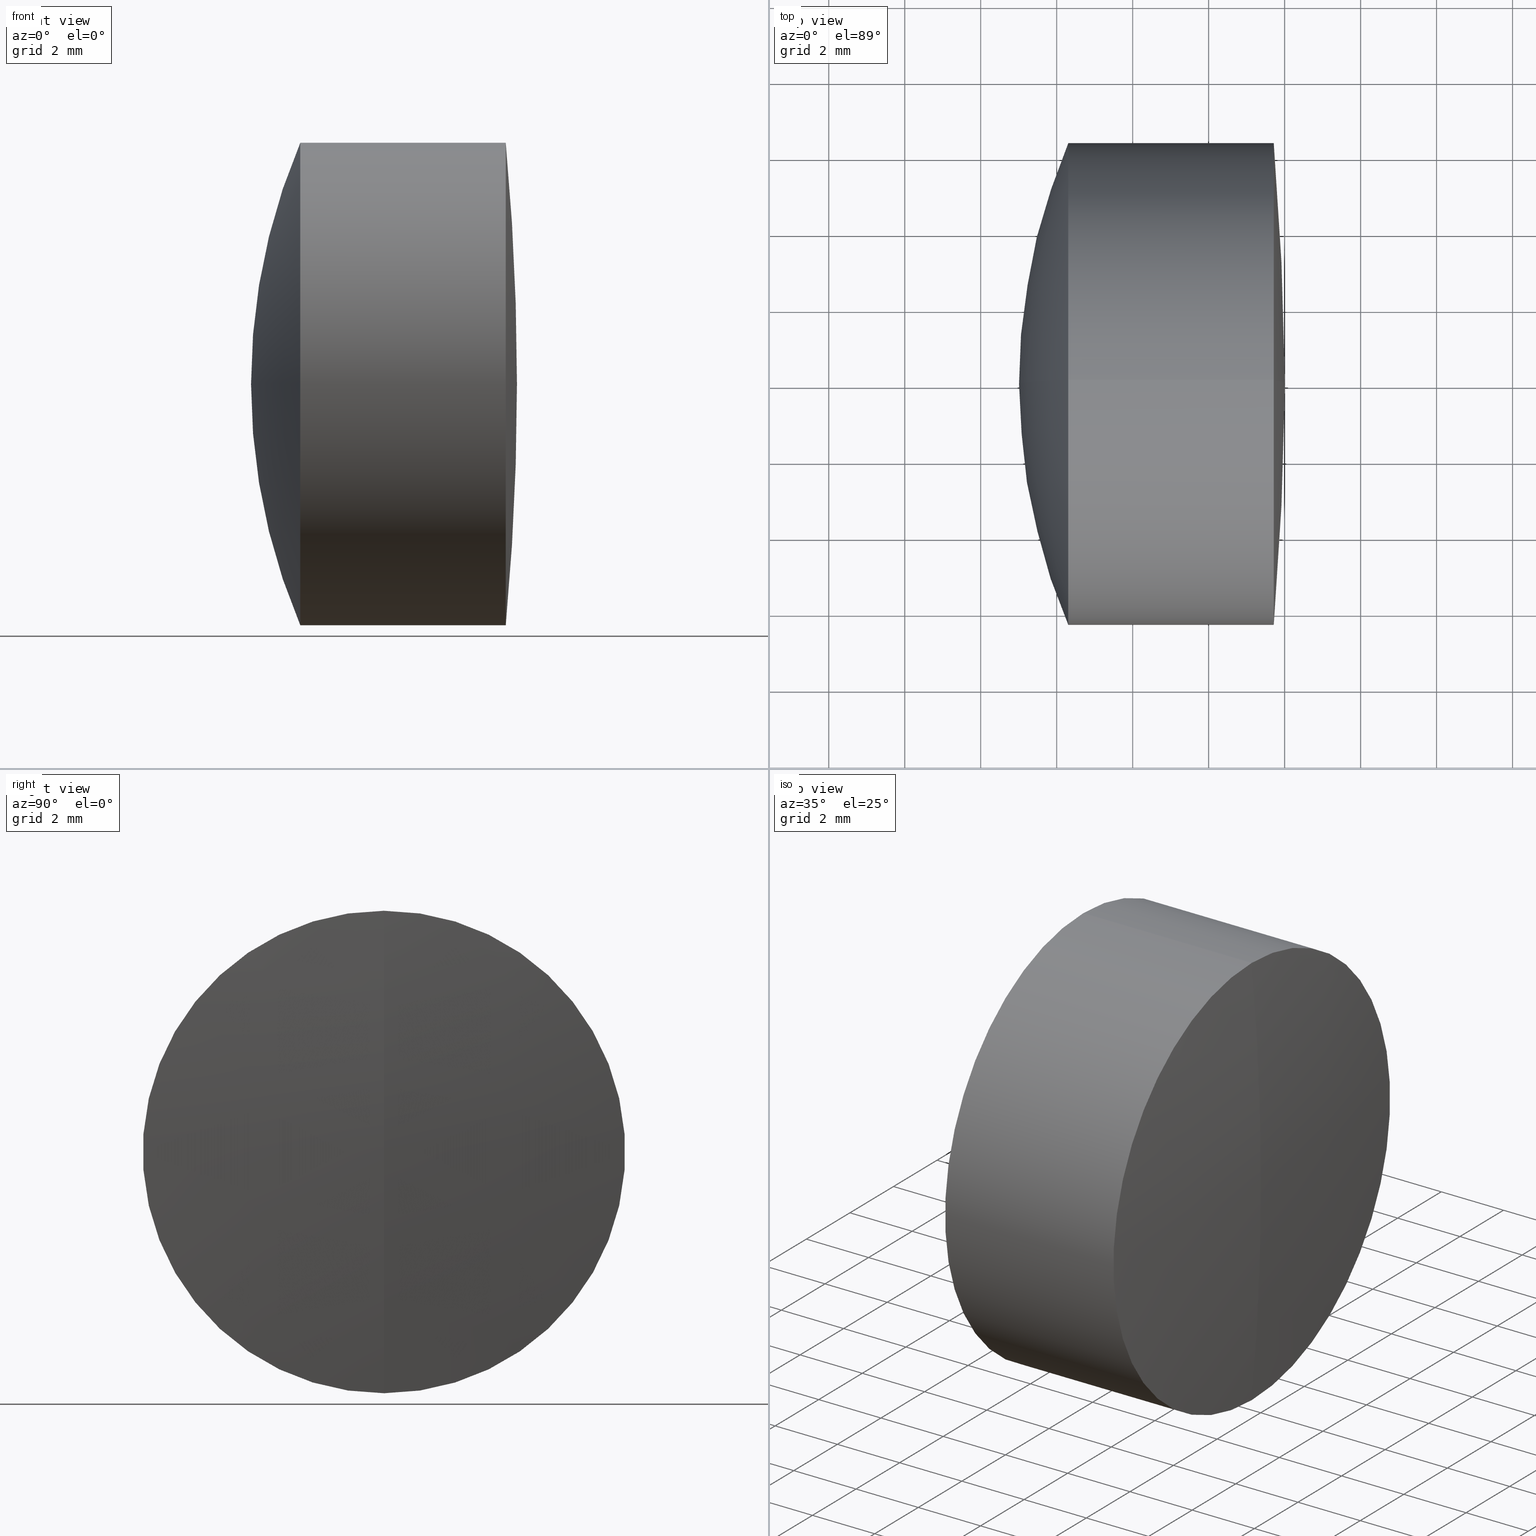
[diagram: canonical four-view strip — front | top / right | iso, engineering-drawing reading convention]
A machine part, canonical four-view strip (front | top / right | iso — engineering-drawing reading convention). The complete STEP part file that produces these views, byte-faithful:
ISO-10303-21;
HEADER;
FILE_DESCRIPTION (( 'STEP AP214' ),
    '1' );
FILE_NAME ('145110.STEP',
    '2019-05-29T08:44:37',
    ( 'user' ),
    ( '΢���й�' ),
    'SwSTEP 2.0',
    'SolidWorks 2016',
    '' );
FILE_SCHEMA (( 'AUTOMOTIVE_DESIGN' ));
ENDSEC;

DATA;
#1 = EDGE_LOOP ( 'NONE', ( #249, #274, #298 ) ) ;
#2 = PRODUCT ( '145110', '145110', '', ( #116 ) ) ;
#3 = ADVANCED_FACE ( 'NONE', ( #93 ), #228, .T. ) ;
#4 = DIRECTION ( 'NONE',  ( -1.000000000000000000, -0.0000000000000000000, -0.0000000000000000000 ) ) ;
#5 = AXIS2_PLACEMENT_3D ( 'NONE', #290, #257, #258 ) ;
#6 = FACE_OUTER_BOUND ( 'NONE', #289, .T. ) ;
#7 = CIRCLE ( 'NONE', #198, 6.349999999999996100 ) ;
#8 = ORIENTED_EDGE ( 'NONE', *, *, #154, .F. ) ;
#9 = EDGE_CURVE ( 'NONE', #79, #324, #100, .T. ) ;
#10 = CARTESIAN_POINT ( 'NONE',  ( 276.0089566504702200, 0.0000000000000000000, 4.194415287079683600E-015 ) ) ;
#11 = PRESENTATION_LAYER_ASSIGNMENT (  '', '', ( #346 ) ) ;
#12 = SURFACE_SIDE_STYLE ('',( #150 ) ) ;
#13 = CIRCLE ( 'NONE', #302, 13.29999999999997600 ) ;
#14 = VERTEX_POINT ( 'NONE', #282 ) ;
#15 = CARTESIAN_POINT ( 'NONE',  ( 124.5233095260452400, 0.0000000000000000000, 0.0000000000000000000 ) ) ;
#16 = UNCERTAINTY_MEASURE_WITH_UNIT (LENGTH_MEASURE( 1.000000000000000100E-005 ), #292, 'distance_accuracy_value', 'NONE');
#17 = ADVANCED_FACE ( 'NONE', ( #219 ), #165, .F. ) ;
#18 = CARTESIAN_POINT ( 'NONE',  ( 275.7139967868120000, 0.0000000000000000000, 0.0000000000000000000 ) ) ;
#19 = DIRECTION ( 'NONE',  ( 0.0000000000000000000, 0.0000000000000000000, 1.000000000000000000 ) ) ;
#20 = ORIENTED_EDGE ( 'NONE', *, *, #53, .T. ) ;
#21 = ORIENTED_EDGE ( 'NONE', *, *, #145, .F. ) ;
#22 = EDGE_CURVE ( 'NONE', #293, #39, #108, .T. ) ;
#23 =( LENGTH_UNIT ( ) NAMED_UNIT ( * ) SI_UNIT ( .MILLI., .METRE. ) );
#24 = EDGE_LOOP ( 'NONE', ( #335, #170, #152, #21 ) ) ;
#25 = AXIS2_PLACEMENT_3D ( 'NONE', #95, #123, #283 ) ;
#26 = CIRCLE ( 'NONE', #276, 6.349999999999996100 ) ;
#27 = CARTESIAN_POINT ( 'NONE',  ( 269.0089566504702200, 0.0000000000000000000, -2.334349788578312700E-015 ) ) ;
#28 = SURFACE_SIDE_STYLE ('',( #115 ) ) ;
#29 =( GEOMETRIC_REPRESENTATION_CONTEXT ( 3 ) GLOBAL_UNCERTAINTY_ASSIGNED_CONTEXT ( ( #256 ) ) GLOBAL_UNIT_ASSIGNED_CONTEXT ( ( #23, #71, #300 ) ) REPRESENTATION_CONTEXT ( 'NONE', 'WORKASPACE' ) );
#30 = CIRCLE ( 'NONE', #246, 68.49999999999998600 ) ;
#31 = DIRECTION ( 'NONE',  ( -1.000000000000000000, -0.0000000000000000000, -0.0000000000000000000 ) ) ;
#32 = CARTESIAN_POINT ( 'NONE',  ( 285.2089566504702100, 0.0000000000000000000, -3.326313695887668000E-015 ) ) ;
#33 = CARTESIAN_POINT ( 'NONE',  ( 272.3951664723072100, 0.0000000000000000000, 0.0000000000000000000 ) ) ;
#34 = ORIENTED_EDGE ( 'NONE', *, *, #234, .F. ) ;
#35 = VECTOR ( 'NONE', #88, 1000.000000000000000 ) ;
#36 = DIRECTION ( 'NONE',  ( 0.0000000000000000000, -1.000000000000000000, 0.0000000000000000000 ) ) ;
#37 = LINE ( 'NONE', #130, #73 ) ;
#38 = DIRECTION ( 'NONE',  ( 0.0000000000000000000, 0.0000000000000000000, 1.000000000000000000 ) ) ;
#39 = VERTEX_POINT ( 'NONE', #184 ) ;
#40 = PRESENTATION_LAYER_ASSIGNMENT (  '', '', ( #51 ) ) ;
#41 = DIRECTION ( 'NONE',  ( 0.0000000000000000000, 0.0000000000000000000, 1.000000000000000000 ) ) ;
#42 = COLOUR_RGB ( '',1.000000000000000000, 1.000000000000000000, 1.000000000000000000 ) ;
#43 = ADVANCED_FACE ( 'NONE', ( #121 ), #83, .T. ) ;
#44 = DIRECTION ( 'NONE',  ( -1.000000000000000000, -0.0000000000000000000, -0.0000000000000000000 ) ) ;
#45 = EDGE_CURVE ( 'NONE', #218, #122, #164, .T. ) ;
#46 = AXIS2_PLACEMENT_3D ( 'NONE', #237, #243, #189 ) ;
#47 = FACE_OUTER_BOUND ( 'NONE', #1, .T. ) ;
#48 = ADVANCED_FACE ( 'NONE', ( #199 ), #131, .T. ) ;
#49 = FILL_AREA_STYLE_COLOUR ( '', #129 ) ;
#50 =( LENGTH_UNIT ( ) NAMED_UNIT ( * ) SI_UNIT ( .MILLI., .METRE. ) );
#51 = STYLED_ITEM ( 'NONE', ( #306 ), #107 ) ;
#52 = SPHERICAL_SURFACE ( 'NONE', #280, 16.19999999999998500 ) ;
#53 = EDGE_CURVE ( 'NONE', #122, #132, #98, .T. ) ;
#54 = FACE_OUTER_BOUND ( 'NONE', #288, .T. ) ;
#55 = CARTESIAN_POINT ( 'NONE',  ( 207.5089566504702000, 0.0000000000000000000, 0.0000000000000000000 ) ) ;
#56 = MECHANICAL_DESIGN_GEOMETRIC_PRESENTATION_REPRESENTATION (  '', ( #51 ), #105 ) ;
#57 = CARTESIAN_POINT ( 'NONE',  ( -0.5519199926577972300, 7.776507174585686200E-016, -6.349999999999994300 ) ) ;
#58 = ORIENTED_EDGE ( 'NONE', *, *, #267, .T. ) ;
#59 = CIRCLE ( 'NONE', #5, 13.29999999999997200 ) ;
#60 = EDGE_LOOP ( 'NONE', ( #223, #140, #147, #8 ) ) ;
#61 = CARTESIAN_POINT ( 'NONE',  ( 270.3053497044990600, 0.0000000000000000000, 0.0000000000000000000 ) ) ;
#62 = AXIS2_PLACEMENT_3D ( 'NONE', #141, #175, #334 ) ;
#63 = SPHERICAL_SURFACE ( 'NONE', #25, 16.19999999999998500 ) ;
#64 = CARTESIAN_POINT ( 'NONE',  ( 124.5233095260452400, 0.0000000000000000000, 0.0000000000000000000 ) ) ;
#65 = ORIENTED_EDGE ( 'NONE', *, *, #22, .T. ) ;
#66 = VERTEX_POINT ( 'NONE', #179 ) ;
#67 = CIRCLE ( 'NONE', #262, 6.349999999999993400 ) ;
#68 = DIRECTION ( 'NONE',  ( 0.0000000000000000000, 1.000000000000000000, 0.0000000000000000000 ) ) ;
#69 = CARTESIAN_POINT ( 'NONE',  ( 270.3053497044990600, 7.776507174585691200E-016, -6.350000000000001400 ) ) ;
#70 = DIRECTION ( 'NONE',  ( -1.000000000000000000, -0.0000000000000000000, -0.0000000000000000000 ) ) ;
#71 =( NAMED_UNIT ( * ) PLANE_ANGLE_UNIT ( ) SI_UNIT ( $, .RADIAN. ) );
#72 = DIRECTION ( 'NONE',  ( 0.0000000000000000000, 0.0000000000000000000, 1.000000000000000000 ) ) ;
#73 = VECTOR ( 'NONE', #114, 1000.000000000000000 ) ;
#74 = ORIENTED_EDGE ( 'NONE', *, *, #339, .F. ) ;
#75 = CARTESIAN_POINT ( 'NONE',  ( 124.5233095260452400, 7.776507174585689200E-016, -6.349999999999996100 ) ) ;
#76 = AXIS2_PLACEMENT_3D ( 'NONE', #296, #344, #127 ) ;
#77 = ADVANCED_FACE ( 'NONE', ( #139 ), #313, .T. ) ;
#78 = CARTESIAN_POINT ( 'NONE',  ( 260.7089566504702100, 0.0000000000000000000, -3.469446951953614200E-015 ) ) ;
#79 = VERTEX_POINT ( 'NONE', #113 ) ;
#80 =( GEOMETRIC_REPRESENTATION_CONTEXT ( 3 ) GLOBAL_UNCERTAINTY_ASSIGNED_CONTEXT ( ( #196 ) ) GLOBAL_UNIT_ASSIGNED_CONTEXT ( ( #50, #247, #272 ) ) REPRESENTATION_CONTEXT ( 'NONE', 'WORKASPACE' ) );
#81 = DIRECTION ( 'NONE',  ( 0.0000000000000000000, 0.0000000000000000000, -1.000000000000000000 ) ) ;
#82 = EDGE_CURVE ( 'NONE', #66, #39, #37, .T. ) ;
#83 = CYLINDRICAL_SURFACE ( 'NONE', #202, 6.349999999999996100 ) ;
#84 = CARTESIAN_POINT ( 'NONE',  ( 260.7089566504702100, 0.0000000000000000000, -3.469446951953614200E-015 ) ) ;
#85 = PRODUCT_RELATED_PRODUCT_CATEGORY ( 'part', '', ( #2 ) ) ;
#86 = DIRECTION ( 'NONE',  ( 0.0000000000000000000, 0.0000000000000000000, 1.000000000000000000 ) ) ;
#87 = ORIENTED_EDGE ( 'NONE', *, *, #295, .F. ) ;
#88 = DIRECTION ( 'NONE',  ( -1.000000000000000000, -0.0000000000000000000, -0.0000000000000000000 ) ) ;
#89 = DIRECTION ( 'NONE',  ( 0.0000000000000000000, 0.0000000000000000000, 1.000000000000000000 ) ) ;
#90 = DIRECTION ( 'NONE',  ( 1.000000000000000000, 0.0000000000000000000, 0.0000000000000000000 ) ) ;
#91 = AXIS2_PLACEMENT_3D ( 'NONE', #260, #312, #310 ) ;
#92 = ADVANCED_FACE ( 'NONE', ( #54 ), #63, .T. ) ;
#93 = FACE_OUTER_BOUND ( 'NONE', #24, .T. ) ;
#94 = VERTEX_POINT ( 'NONE', #69 ) ;
#95 = CARTESIAN_POINT ( 'NONE',  ( 285.2089566504702100, 0.0000000000000000000, -3.326313695887668000E-015 ) ) ;
#96 = AXIS2_PLACEMENT_3D ( 'NONE', #166, #4, #193 ) ;
#97 = DIRECTION ( 'NONE',  ( 0.0000000000000000000, 0.0000000000000000000, 1.000000000000000000 ) ) ;
#98 = LINE ( 'NONE', #57, #287 ) ;
#99 = EDGE_CURVE ( 'NONE', #144, #167, #181, .T. ) ;
#100 = CIRCLE ( 'NONE', #91, 16.19999999999998500 ) ;
#101 = CARTESIAN_POINT ( 'NONE',  ( 260.7089566504702100, 0.0000000000000000000, -3.469446951953614200E-015 ) ) ;
#102 = ADVANCED_FACE ( 'NONE', ( #47 ), #245, .T. ) ;
#103 = EDGE_LOOP ( 'NONE', ( #338, #343, #74 ) ) ;
#104 = DIRECTION ( 'NONE',  ( 0.0000000000000000000, 0.0000000000000000000, -1.000000000000000000 ) ) ;
#105 =( GEOMETRIC_REPRESENTATION_CONTEXT ( 3 ) GLOBAL_UNCERTAINTY_ASSIGNED_CONTEXT ( ( #16 ) ) GLOBAL_UNIT_ASSIGNED_CONTEXT ( ( #292, #124, #341 ) ) REPRESENTATION_CONTEXT ( 'NONE', 'WORKASPACE' ) );
#106 =( NAMED_UNIT ( * ) PLANE_ANGLE_UNIT ( ) SI_UNIT ( $, .RADIAN. ) );
#107 = MANIFOLD_SOLID_BREP ( '��ת3', #209 ) ;
#108 = CIRCLE ( 'NONE', #265, 13.29999999999997200 ) ;
#109 = FILL_AREA_STYLE_COLOUR ( '', #329 ) ;
#110 = APPLICATION_CONTEXT ( 'automotive_design' ) ;
#111 = EDGE_CURVE ( 'NONE', #79, #94, #7, .T. ) ;
#112 = DIRECTION ( 'NONE',  ( 0.0000000000000000000, -1.000000000000000000, 0.0000000000000000000 ) ) ;
#113 = CARTESIAN_POINT ( 'NONE',  ( 270.3053497044990600, 0.0000000000000000000, 6.349999999999997900 ) ) ;
#114 = DIRECTION ( 'NONE',  ( -1.000000000000000000, -0.0000000000000000000, -0.0000000000000000000 ) ) ;
#115 = SURFACE_STYLE_FILL_AREA ( #221 ) ;
#116 = PRODUCT_CONTEXT ( 'NONE', #319, 'mechanical' ) ;
#117 = AXIS2_PLACEMENT_3D ( 'NONE', #64, #180, #38 ) ;
#118 = CARTESIAN_POINT ( 'NONE',  ( 207.5089566504702000, 0.0000000000000000000, 0.0000000000000000000 ) ) ;
#119 = CARTESIAN_POINT ( 'NONE',  ( 124.5233095260452400, 0.0000000000000000000, 6.349999999999996100 ) ) ;
#120 = CARTESIAN_POINT ( 'NONE',  ( 272.3951664723072100, 0.0000000000000000000, 6.349999999999996100 ) ) ;
#121 = FACE_OUTER_BOUND ( 'NONE', #60, .T. ) ;
#122 = VERTEX_POINT ( 'NONE', #206 ) ;
#123 = DIRECTION ( 'NONE',  ( 0.0000000000000000000, 1.000000000000000000, 0.0000000000000000000 ) ) ;
#124 =( NAMED_UNIT ( * ) PLANE_ANGLE_UNIT ( ) SI_UNIT ( $, .RADIAN. ) );
#125 = DIRECTION ( 'NONE',  ( -1.000000000000000000, -0.0000000000000000000, -0.0000000000000000000 ) ) ;
#126 = DIRECTION ( 'NONE',  ( -1.000000000000000000, -0.0000000000000000000, -0.0000000000000000000 ) ) ;
#127 = DIRECTION ( 'NONE',  ( 0.0000000000000000000, 0.0000000000000000000, 1.000000000000000000 ) ) ;
#128 = SURFACE_STYLE_USAGE ( .BOTH. , #294 ) ;
#129 = COLOUR_RGB ( '',1.000000000000000000, 1.000000000000000000, 1.000000000000000000 ) ;
#130 = CARTESIAN_POINT ( 'NONE',  ( -0.5519199926577972300, 0.0000000000000000000, 6.349999999999994300 ) ) ;
#131 = CYLINDRICAL_SURFACE ( 'NONE', #212, 6.349999999999994300 ) ;
#132 = VERTEX_POINT ( 'NONE', #278 ) ;
#133 = ORIENTED_EDGE ( 'NONE', *, *, #284, .T. ) ;
#134 = PRODUCT_DEFINITION_CONTEXT ( 'detailed design', #110, 'design' ) ;
#135 = ADVANCED_FACE ( 'NONE', ( #316 ), #266, .T. ) ;
#136 = AXIS2_PLACEMENT_3D ( 'NONE', #18, #142, #318 ) ;
#137 = EDGE_LOOP ( 'NONE', ( #230, #20, #231, #172 ) ) ;
#138 = ORIENTED_EDGE ( 'NONE', *, *, #197, .F. ) ;
#139 = FACE_OUTER_BOUND ( 'NONE', #268, .T. ) ;
#140 = ORIENTED_EDGE ( 'NONE', *, *, #295, .T. ) ;
#141 = CARTESIAN_POINT ( 'NONE',  ( 207.5089566504702000, 0.0000000000000000000, 0.0000000000000000000 ) ) ;
#142 = DIRECTION ( 'NONE',  ( -1.000000000000000000, -0.0000000000000000000, -0.0000000000000000000 ) ) ;
#143 = DIRECTION ( 'NONE',  ( 0.0000000000000000000, 1.000000000000000000, 0.0000000000000000000 ) ) ;
#144 = VERTEX_POINT ( 'NONE', #208 ) ;
#145 = EDGE_CURVE ( 'NONE', #132, #39, #26, .T. ) ;
#146 = SHAPE_DEFINITION_REPRESENTATION ( #325, #220 ) ;
#147 = ORIENTED_EDGE ( 'NONE', *, *, #111, .F. ) ;
#148 = SPHERICAL_SURFACE ( 'NONE', #322, 13.29999999999997200 ) ;
#149 = CARTESIAN_POINT ( 'NONE',  ( 270.3053497044990600, 0.0000000000000000000, 0.0000000000000000000 ) ) ;
#150 = SURFACE_STYLE_FILL_AREA ( #311 ) ;
#151 = CIRCLE ( 'NONE', #305, 13.29999999999997600 ) ;
#152 = ORIENTED_EDGE ( 'NONE', *, *, #82, .T. ) ;
#153 = ORIENTED_EDGE ( 'NONE', *, *, #22, .F. ) ;
#154 = EDGE_CURVE ( 'NONE', #167, #79, #314, .T. ) ;
#155 = CARTESIAN_POINT ( 'NONE',  ( 260.7089566504702100, 0.0000000000000000000, -3.469446951953614200E-015 ) ) ;
#156 = ORIENTED_EDGE ( 'NONE', *, *, #99, .T. ) ;
#157 = CARTESIAN_POINT ( 'NONE',  ( 285.2089566504702100, 0.0000000000000000000, -3.326313695887668000E-015 ) ) ;
#158 = DIRECTION ( 'NONE',  ( 0.0000000000000000000, 0.0000000000000000000, -1.000000000000000000 ) ) ;
#159 = MECHANICAL_DESIGN_GEOMETRIC_PRESENTATION_REPRESENTATION (  '', ( #226 ), #29 ) ;
#160 = ORIENTED_EDGE ( 'NONE', *, *, #273, .F. ) ;
#161 = SPHERICAL_SURFACE ( 'NONE', #192, 13.29999999999997600 ) ;
#162 = ADVANCED_FACE ( 'NONE', ( #269 ), #148, .F. ) ;
#163 = CARTESIAN_POINT ( 'NONE',  ( 0.0000000000000000000, 0.0000000000000000000, 0.0000000000000000000 ) ) ;
#164 = CIRCLE ( 'NONE', #62, 68.49999999999998600 ) ;
#165 = SPHERICAL_SURFACE ( 'NONE', #76, 13.29999999999997200 ) ;
#166 = CARTESIAN_POINT ( 'NONE',  ( 272.3951664723072100, 0.0000000000000000000, 0.0000000000000000000 ) ) ;
#167 = VERTEX_POINT ( 'NONE', #120 ) ;
#168 = PRODUCT_DEFINITION ( 'δ֪', '', #336, #134 ) ;
#169 = EDGE_LOOP ( 'NONE', ( #227, #133, #34 ) ) ;
#170 = ORIENTED_EDGE ( 'NONE', *, *, #234, .T. ) ;
#171 = DIRECTION ( 'NONE',  ( 0.0000000000000000000, 0.0000000000000000000, 1.000000000000000000 ) ) ;
#172 = ORIENTED_EDGE ( 'NONE', *, *, #82, .F. ) ;
#173 = AXIS2_PLACEMENT_3D ( 'NONE', #32, #176, #308 ) ;
#174 = ORIENTED_EDGE ( 'NONE', *, *, #45, .T. ) ;
#175 = DIRECTION ( 'NONE',  ( -0.0000000000000000000, 1.000000000000000000, 1.224646799147353200E-016 ) ) ;
#176 = DIRECTION ( 'NONE',  ( -0.0000000000000000000, 1.000000000000000000, 1.224646799147353200E-016 ) ) ;
#177 = SURFACE_STYLE_USAGE ( .BOTH. , #12 ) ;
#178 = AXIS2_PLACEMENT_3D ( 'NONE', #55, #286, #86 ) ;
#179 = CARTESIAN_POINT ( 'NONE',  ( 275.7139967868120000, 0.0000000000000000000, 6.349999999999993400 ) ) ;
#180 = DIRECTION ( 'NONE',  ( -1.000000000000000000, -0.0000000000000000000, -0.0000000000000000000 ) ) ;
#181 = CIRCLE ( 'NONE', #317, 6.349999999999996100 ) ;
#182 = ORIENTED_EDGE ( 'NONE', *, *, #273, .T. ) ;
#183 = CLOSED_SHELL ( 'NONE', ( #239, #43, #92, #270, #299, #102 ) ) ;
#184 = CARTESIAN_POINT ( 'NONE',  ( 272.3951664723072100, 0.0000000000000000000, 6.349999999999992500 ) ) ;
#185 = CARTESIAN_POINT ( 'NONE',  ( 260.7089566504702100, 0.0000000000000000000, -3.469446951953614200E-015 ) ) ;
#186 =( NAMED_UNIT ( * ) SI_UNIT ( $, .STERADIAN. ) SOLID_ANGLE_UNIT ( ) );
#187 =( GEOMETRIC_REPRESENTATION_CONTEXT ( 3 ) GLOBAL_UNCERTAINTY_ASSIGNED_CONTEXT ( ( #248 ) ) GLOBAL_UNIT_ASSIGNED_CONTEXT ( ( #342, #106, #186 ) ) REPRESENTATION_CONTEXT ( 'NONE', 'WORKASPACE' ) );
#188 = ORIENTED_EDGE ( 'NONE', *, *, #267, .F. ) ;
#189 = DIRECTION ( 'NONE',  ( 0.0000000000000000000, 0.0000000000000000000, 1.000000000000000000 ) ) ;
#190 = CIRCLE ( 'NONE', #136, 6.349999999999993400 ) ;
#191 = CARTESIAN_POINT ( 'NONE',  ( 272.3951664723072100, 0.0000000000000000000, 0.0000000000000000000 ) ) ;
#192 = AXIS2_PLACEMENT_3D ( 'NONE', #155, #210, #214 ) ;
#193 = DIRECTION ( 'NONE',  ( 0.0000000000000000000, 0.0000000000000000000, 1.000000000000000000 ) ) ;
#194 = VECTOR ( 'NONE', #259, 1000.000000000000000 ) ;
#195 = ORIENTED_EDGE ( 'NONE', *, *, #9, .T. ) ;
#196 = UNCERTAINTY_MEASURE_WITH_UNIT (LENGTH_MEASURE( 1.000000000000000100E-005 ), #50, 'distance_accuracy_value', 'NONE');
#197 = EDGE_CURVE ( 'NONE', #94, #79, #205, .T. ) ;
#198 = AXIS2_PLACEMENT_3D ( 'NONE', #149, #263, #213 ) ;
#199 = FACE_OUTER_BOUND ( 'NONE', #137, .T. ) ;
#200 = ORIENTED_EDGE ( 'NONE', *, *, #284, .F. ) ;
#201 = DIRECTION ( 'NONE',  ( -1.000000000000000000, -0.0000000000000000000, -0.0000000000000000000 ) ) ;
#202 = AXIS2_PLACEMENT_3D ( 'NONE', #15, #215, #171 ) ;
#203 = FACE_OUTER_BOUND ( 'NONE', #323, .T. ) ;
#204 = DIRECTION ( 'NONE',  ( -0.0000000000000000000, 1.000000000000000000, 1.224646799147353200E-016 ) ) ;
#205 = CIRCLE ( 'NONE', #217, 6.349999999999996100 ) ;
#206 = CARTESIAN_POINT ( 'NONE',  ( 275.7139967868120000, 7.776507174585685300E-016, -6.349999999999993400 ) ) ;
#207 = DIRECTION ( 'NONE',  ( 0.0000000000000000000, 1.000000000000000000, 0.0000000000000000000 ) ) ;
#208 = CARTESIAN_POINT ( 'NONE',  ( 272.3951664723072100, 7.776507174585689200E-016, -6.349999999999996100 ) ) ;
#209 = CLOSED_SHELL ( 'NONE', ( #77, #48, #162, #17, #3, #135 ) ) ;
#210 = DIRECTION ( 'NONE',  ( 0.0000000000000000000, 1.000000000000000000, 0.0000000000000000000 ) ) ;
#211 = CIRCLE ( 'NONE', #242, 6.349999999999996100 ) ;
#212 = AXIS2_PLACEMENT_3D ( 'NONE', #320, #44, #19 ) ;
#213 = DIRECTION ( 'NONE',  ( 0.0000000000000000000, 0.0000000000000000000, 1.000000000000000000 ) ) ;
#214 = DIRECTION ( 'NONE',  ( 0.0000000000000000000, 0.0000000000000000000, 1.000000000000000000 ) ) ;
#215 = DIRECTION ( 'NONE',  ( -1.000000000000000000, -0.0000000000000000000, -0.0000000000000000000 ) ) ;
#216 = FILL_AREA_STYLE ('',( #326 ) ) ;
#217 = AXIS2_PLACEMENT_3D ( 'NONE', #61, #333, #281 ) ;
#218 = VERTEX_POINT ( 'NONE', #10 ) ;
#219 = FACE_OUTER_BOUND ( 'NONE', #244, .T. ) ;
#220 = ADVANCED_BREP_SHAPE_REPRESENTATION ( '145110', ( #328, #107, #304 ), #187 ) ;
#221 = FILL_AREA_STYLE ('',( #49 ) ) ;
#222 = SURFACE_STYLE_USAGE ( .BOTH. , #28 ) ;
#223 = ORIENTED_EDGE ( 'NONE', *, *, #339, .T. ) ;
#224 = PRESENTATION_STYLE_ASSIGNMENT (( #222 ) ) ;
#225 = EDGE_LOOP ( 'NONE', ( #153, #182, #277 ) ) ;
#226 = STYLED_ITEM ( 'NONE', ( #340 ), #220 ) ;
#227 = ORIENTED_EDGE ( 'NONE', *, *, #45, .F. ) ;
#228 = CYLINDRICAL_SURFACE ( 'NONE', #46, 6.349999999999994300 ) ;
#229 = AXIS2_PLACEMENT_3D ( 'NONE', #254, #143, #233 ) ;
#230 = ORIENTED_EDGE ( 'NONE', *, *, #235, .T. ) ;
#231 = ORIENTED_EDGE ( 'NONE', *, *, #327, .F. ) ;
#232 = CARTESIAN_POINT ( 'NONE',  ( 275.7139967868120000, 0.0000000000000000000, 0.0000000000000000000 ) ) ;
#233 = DIRECTION ( 'NONE',  ( 0.0000000000000000000, 0.0000000000000000000, 1.000000000000000000 ) ) ;
#234 = EDGE_CURVE ( 'NONE', #122, #66, #67, .T. ) ;
#235 = EDGE_CURVE ( 'NONE', #66, #122, #190, .T. ) ;
#236 = CARTESIAN_POINT ( 'NONE',  ( 207.5089566504702000, 0.0000000000000000000, 0.0000000000000000000 ) ) ;
#237 = CARTESIAN_POINT ( 'NONE',  ( -0.5519199926577972300, 0.0000000000000000000, 0.0000000000000000000 ) ) ;
#238 = CARTESIAN_POINT ( 'NONE',  ( 272.3951664723072100, 0.0000000000000000000, 0.0000000000000000000 ) ) ;
#239 = ADVANCED_FACE ( 'NONE', ( #275 ), #161, .T. ) ;
#240 = CARTESIAN_POINT ( 'NONE',  ( 274.0089566504702200, 0.0000000000000000000, -2.655056830520626100E-015 ) ) ;
#241 = DIRECTION ( 'NONE',  ( 0.0000000000000000000, 0.0000000000000000000, 1.000000000000000000 ) ) ;
#242 = AXIS2_PLACEMENT_3D ( 'NONE', #191, #126, #241 ) ;
#243 = DIRECTION ( 'NONE',  ( -1.000000000000000000, -0.0000000000000000000, -0.0000000000000000000 ) ) ;
#244 = EDGE_LOOP ( 'NONE', ( #160, #65, #315 ) ) ;
#245 = SPHERICAL_SURFACE ( 'NONE', #229, 13.29999999999997600 ) ;
#246 = AXIS2_PLACEMENT_3D ( 'NONE', #118, #36, #158 ) ;
#247 =( NAMED_UNIT ( * ) PLANE_ANGLE_UNIT ( ) SI_UNIT ( $, .RADIAN. ) );
#248 = UNCERTAINTY_MEASURE_WITH_UNIT (LENGTH_MEASURE( 1.000000000000000100E-005 ), #342, 'distance_accuracy_value', 'NONE');
#249 = ORIENTED_EDGE ( 'NONE', *, *, #285, .F. ) ;
#250 = MECHANICAL_DESIGN_GEOMETRIC_PRESENTATION_REPRESENTATION (  '', ( #346 ), #80 ) ;
#251 = ORIENTED_EDGE ( 'NONE', *, *, #9, .F. ) ;
#252 = DIRECTION ( 'NONE',  ( 0.0000000000000000000, 0.0000000000000000000, 1.000000000000000000 ) ) ;
#253 = PRESENTATION_LAYER_ASSIGNMENT (  '', '', ( #226 ) ) ;
#254 = CARTESIAN_POINT ( 'NONE',  ( 260.7089566504702100, 0.0000000000000000000, -3.469446951953614200E-015 ) ) ;
#255 = LINE ( 'NONE', #75, #194 ) ;
#256 = UNCERTAINTY_MEASURE_WITH_UNIT (LENGTH_MEASURE( 1.000000000000000100E-005 ), #23, 'distance_accuracy_value', 'NONE');
#257 = DIRECTION ( 'NONE',  ( -0.0000000000000000000, 1.000000000000000000, 1.224646799147353200E-016 ) ) ;
#258 = DIRECTION ( 'NONE',  ( 0.0000000000000000000, -1.224646799147353200E-016, 1.000000000000000000 ) ) ;
#259 = DIRECTION ( 'NONE',  ( -1.000000000000000000, -0.0000000000000000000, -0.0000000000000000000 ) ) ;
#260 = CARTESIAN_POINT ( 'NONE',  ( 285.2089566504702100, 0.0000000000000000000, -3.326313695887668000E-015 ) ) ;
#261 = SURFACE_STYLE_FILL_AREA ( #216 ) ;
#262 = AXIS2_PLACEMENT_3D ( 'NONE', #232, #31, #89 ) ;
#263 = DIRECTION ( 'NONE',  ( -1.000000000000000000, -0.0000000000000000000, -0.0000000000000000000 ) ) ;
#264 = DIRECTION ( 'NONE',  ( 0.0000000000000000000, 0.0000000000000000000, 1.000000000000000000 ) ) ;
#265 = AXIS2_PLACEMENT_3D ( 'NONE', #84, #112, #81 ) ;
#266 = SPHERICAL_SURFACE ( 'NONE', #332, 68.49999999999998600 ) ;
#267 = EDGE_CURVE ( 'NONE', #94, #324, #303, .T. ) ;
#268 = EDGE_LOOP ( 'NONE', ( #200, #174, #307 ) ) ;
#269 = FACE_OUTER_BOUND ( 'NONE', #225, .T. ) ;
#270 = ADVANCED_FACE ( 'NONE', ( #6 ), #52, .T. ) ;
#271 = DIRECTION ( 'NONE',  ( 0.0000000000000000000, -1.000000000000000000, 0.0000000000000000000 ) ) ;
#272 =( NAMED_UNIT ( * ) SI_UNIT ( $, .STERADIAN. ) SOLID_ANGLE_UNIT ( ) );
#273 = EDGE_CURVE ( 'NONE', #293, #132, #59, .T. ) ;
#274 = ORIENTED_EDGE ( 'NONE', *, *, #309, .T. ) ;
#275 = FACE_OUTER_BOUND ( 'NONE', #103, .T. ) ;
#276 = AXIS2_PLACEMENT_3D ( 'NONE', #238, #125, #72 ) ;
#277 = ORIENTED_EDGE ( 'NONE', *, *, #145, .T. ) ;
#278 = CARTESIAN_POINT ( 'NONE',  ( 272.3951664723072100, 7.776507174585683300E-016, -6.349999999999996100 ) ) ;
#279 = APPLICATION_PROTOCOL_DEFINITION ( 'draft international standard', 'automotive_design', 1998, #110 ) ;
#280 = AXIS2_PLACEMENT_3D ( 'NONE', #157, #347, #337 ) ;
#281 = DIRECTION ( 'NONE',  ( 0.0000000000000000000, 0.0000000000000000000, 1.000000000000000000 ) ) ;
#282 = CARTESIAN_POINT ( 'NONE',  ( 274.0089566504702200, 0.0000000000000000000, -2.655056830520625700E-015 ) ) ;
#283 = DIRECTION ( 'NONE',  ( 0.0000000000000000000, 0.0000000000000000000, 1.000000000000000000 ) ) ;
#284 = EDGE_CURVE ( 'NONE', #218, #66, #30, .T. ) ;
#285 = EDGE_CURVE ( 'NONE', #14, #144, #13, .T. ) ;
#286 = DIRECTION ( 'NONE',  ( 0.0000000000000000000, 1.000000000000000000, 0.0000000000000000000 ) ) ;
#287 = VECTOR ( 'NONE', #70, 1000.000000000000000 ) ;
#288 = EDGE_LOOP ( 'NONE', ( #330, #58, #251 ) ) ;
#289 = EDGE_LOOP ( 'NONE', ( #188, #331, #195 ) ) ;
#290 = CARTESIAN_POINT ( 'NONE',  ( 260.7089566504702100, 0.0000000000000000000, -3.469446951953614200E-015 ) ) ;
#291 = DIRECTION ( 'NONE',  ( 0.0000000000000000000, -1.224646799147353000E-016, 1.000000000000000000 ) ) ;
#292 =( LENGTH_UNIT ( ) NAMED_UNIT ( * ) SI_UNIT ( .MILLI., .METRE. ) );
#293 = VERTEX_POINT ( 'NONE', #240 ) ;
#294 = SURFACE_SIDE_STYLE ('',( #261 ) ) ;
#295 = EDGE_CURVE ( 'NONE', #144, #94, #255, .T. ) ;
#296 = CARTESIAN_POINT ( 'NONE',  ( 260.7089566504702100, 0.0000000000000000000, -3.469446951953614200E-015 ) ) ;
#297 = CYLINDRICAL_SURFACE ( 'NONE', #117, 6.349999999999996100 ) ;
#298 = ORIENTED_EDGE ( 'NONE', *, *, #99, .F. ) ;
#299 = ADVANCED_FACE ( 'NONE', ( #203 ), #297, .T. ) ;
#300 =( NAMED_UNIT ( * ) SI_UNIT ( $, .STERADIAN. ) SOLID_ANGLE_UNIT ( ) );
#301 = ORIENTED_EDGE ( 'NONE', *, *, #154, .T. ) ;
#302 = AXIS2_PLACEMENT_3D ( 'NONE', #101, #204, #291 ) ;
#303 = CIRCLE ( 'NONE', #173, 16.19999999999998500 ) ;
#304 = AXIS2_PLACEMENT_3D ( 'NONE', #163, #97, #90 ) ;
#305 = AXIS2_PLACEMENT_3D ( 'NONE', #78, #271, #104 ) ;
#306 = PRESENTATION_STYLE_ASSIGNMENT (( #177 ) ) ;
#307 = ORIENTED_EDGE ( 'NONE', *, *, #235, .F. ) ;
#308 = DIRECTION ( 'NONE',  ( 0.0000000000000000000, -1.224646799147353200E-016, 1.000000000000000000 ) ) ;
#309 = EDGE_CURVE ( 'NONE', #14, #167, #151, .T. ) ;
#310 = DIRECTION ( 'NONE',  ( 0.0000000000000000000, 0.0000000000000000000, -1.000000000000000000 ) ) ;
#311 = FILL_AREA_STYLE ('',( #109 ) ) ;
#312 = DIRECTION ( 'NONE',  ( 0.0000000000000000000, -1.000000000000000000, 0.0000000000000000000 ) ) ;
#313 = SPHERICAL_SURFACE ( 'NONE', #178, 68.49999999999998600 ) ;
#314 = LINE ( 'NONE', #119, #35 ) ;
#315 = ORIENTED_EDGE ( 'NONE', *, *, #327, .T. ) ;
#316 = FACE_OUTER_BOUND ( 'NONE', #169, .T. ) ;
#317 = AXIS2_PLACEMENT_3D ( 'NONE', #33, #201, #252 ) ;
#318 = DIRECTION ( 'NONE',  ( 0.0000000000000000000, 0.0000000000000000000, 1.000000000000000000 ) ) ;
#319 = APPLICATION_CONTEXT ( 'automotive_design' ) ;
#320 = CARTESIAN_POINT ( 'NONE',  ( -0.5519199926577972300, 0.0000000000000000000, 0.0000000000000000000 ) ) ;
#321 = CIRCLE ( 'NONE', #96, 6.349999999999996100 ) ;
#322 = AXIS2_PLACEMENT_3D ( 'NONE', #185, #68, #264 ) ;
#323 = EDGE_LOOP ( 'NONE', ( #87, #156, #301, #138 ) ) ;
#324 = VERTEX_POINT ( 'NONE', #27 ) ;
#325 = PRODUCT_DEFINITION_SHAPE ( 'NONE', 'NONE',  #168 ) ;
#326 = FILL_AREA_STYLE_COLOUR ( '', #42 ) ;
#327 = EDGE_CURVE ( 'NONE', #39, #132, #321, .T. ) ;
#328 = MANIFOLD_SOLID_BREP ( '��ת1', #183 ) ;
#329 = COLOUR_RGB ( '',1.000000000000000000, 1.000000000000000000, 1.000000000000000000 ) ;
#330 = ORIENTED_EDGE ( 'NONE', *, *, #111, .T. ) ;
#331 = ORIENTED_EDGE ( 'NONE', *, *, #197, .T. ) ;
#332 = AXIS2_PLACEMENT_3D ( 'NONE', #236, #207, #41 ) ;
#333 = DIRECTION ( 'NONE',  ( -1.000000000000000000, -0.0000000000000000000, -0.0000000000000000000 ) ) ;
#334 = DIRECTION ( 'NONE',  ( 0.0000000000000000000, -1.224646799147353200E-016, 1.000000000000000000 ) ) ;
#335 = ORIENTED_EDGE ( 'NONE', *, *, #53, .F. ) ;
#336 = PRODUCT_DEFINITION_FORMATION_WITH_SPECIFIED_SOURCE ( '�κ�', '', #2, .NOT_KNOWN. ) ;
#337 = DIRECTION ( 'NONE',  ( 0.0000000000000000000, 0.0000000000000000000, 1.000000000000000000 ) ) ;
#338 = ORIENTED_EDGE ( 'NONE', *, *, #309, .F. ) ;
#339 = EDGE_CURVE ( 'NONE', #167, #144, #211, .T. ) ;
#340 = PRESENTATION_STYLE_ASSIGNMENT (( #128 ) ) ;
#341 =( NAMED_UNIT ( * ) SI_UNIT ( $, .STERADIAN. ) SOLID_ANGLE_UNIT ( ) );
#342 =( LENGTH_UNIT ( ) NAMED_UNIT ( * ) SI_UNIT ( .MILLI., .METRE. ) );
#343 = ORIENTED_EDGE ( 'NONE', *, *, #285, .T. ) ;
#344 = DIRECTION ( 'NONE',  ( 0.0000000000000000000, 1.000000000000000000, 0.0000000000000000000 ) ) ;
#345 = APPLICATION_PROTOCOL_DEFINITION ( 'draft international standard', 'automotive_design', 1998, #319 ) ;
#346 = STYLED_ITEM ( 'NONE', ( #224 ), #328 ) ;
#347 = DIRECTION ( 'NONE',  ( 0.0000000000000000000, 1.000000000000000000, 0.0000000000000000000 ) ) ;
ENDSEC;
END-ISO-10303-21;
